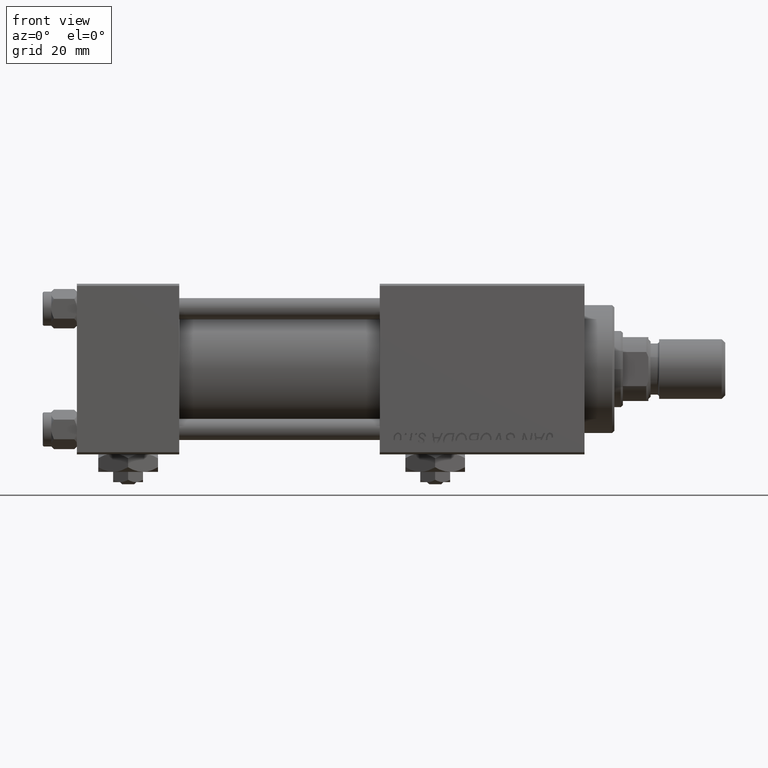
[diagram: clean part render]
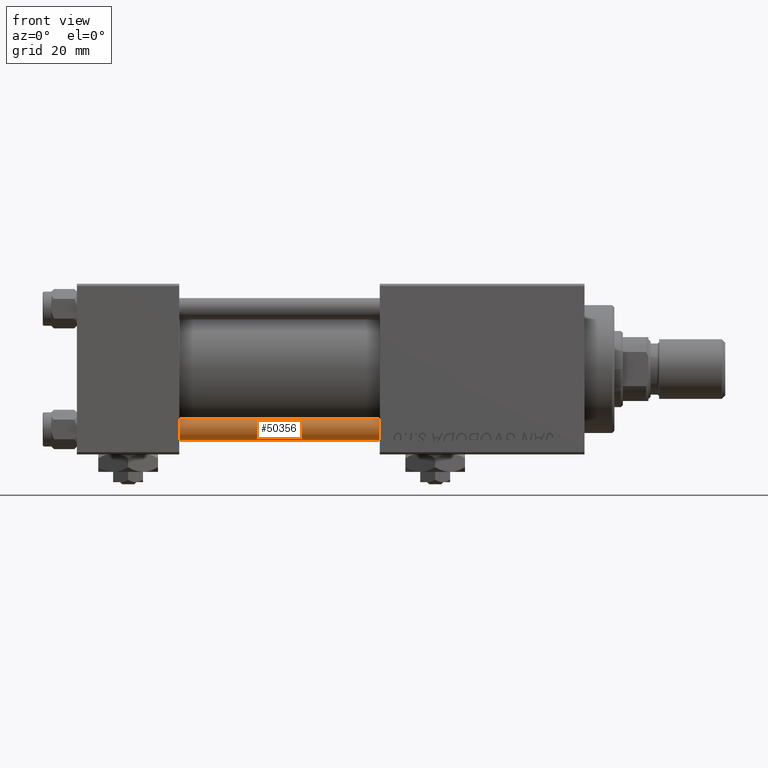
[diagram: same view with one face highlighted and labeled with its STEP entity id]
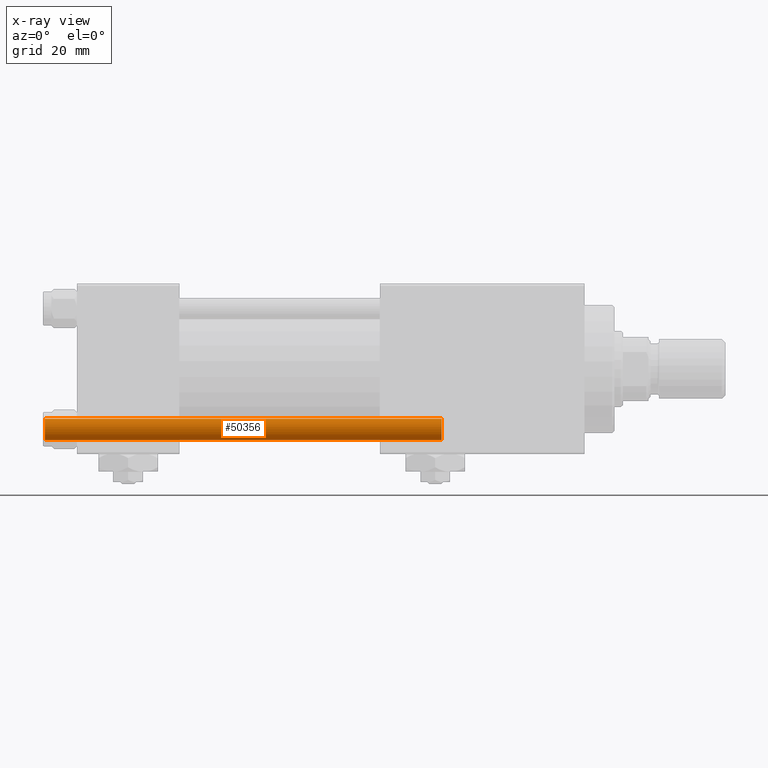
[diagram: x-ray of the same camera — body ghosted, the highlighted face saturated]
A machine part, front view. The second image highlights one B-rep face of the part: STEP entity #50356.
The next image is the same camera in x-ray: the body ghosted, the highlighted face saturated — about 0% of this face is hidden behind the body in this view.
In plain terms, the highlighted cylindrical surface (edge-blend (fillet) strip) has radius 2.5 mm, axis along (-1, -0, -0).
Its self-contained STEP definition (entity closure, byte-faithful):
#2531 = CARTESIAN_POINT ( 'NONE',  ( -2.500000000000000000, 0.000000000000000000, 0.5000000000000004441 ) ) ;
#2735 = DIRECTION ( 'NONE',  ( -0.000000000000000000, -0.000000000000000000, 1.000000000000000000 ) ) ;
#3413 = AXIS2_PLACEMENT_3D ( 'NONE', #36064, #52272, #48026 ) ;
#3484 = LINE ( 'NONE', #48125, #33621 ) ;
#5415 = ORIENTED_EDGE ( 'NONE', *, *, #38694, .T. ) ;
#5804 = CARTESIAN_POINT ( 'NONE',  ( 2.500000000000000000, 3.061616997868383141E-16, 0.5000000000000004441 ) ) ;
#10627 = VERTEX_POINT ( 'NONE', #5804 ) ;
#11083 = EDGE_CURVE ( 'NONE', #17206, #17773, #33652, .T. ) ;
#13988 = DIRECTION ( 'NONE',  ( -0.000000000000000000, -0.000000000000000000, -1.000000000000000000 ) ) ;
#14346 = CARTESIAN_POINT ( 'NONE',  ( 0.000000000000000000, 0.000000000000000000, 94.00000000000000000 ) ) ;
#15302 = ORIENTED_EDGE ( 'NONE', *, *, #11083, .F. ) ;
#16439 = AXIS2_PLACEMENT_3D ( 'NONE', #14346, #17812, #43046 ) ;
#17206 = VERTEX_POINT ( 'NONE', #39326 ) ;
#17773 = VERTEX_POINT ( 'NONE', #2531 ) ;
#17812 = DIRECTION ( 'NONE',  ( -0.000000000000000000, -0.000000000000000000, -1.000000000000000000 ) ) ;
#18070 = EDGE_CURVE ( 'NONE', #10627, #17773, #28866, .T. ) ;
#20334 = CARTESIAN_POINT ( 'NONE',  ( 2.500000000000000000, 3.061616997868383141E-16, 93.50000000000001421 ) ) ;
#28414 = VERTEX_POINT ( 'NONE', #20334 ) ;
#28782 = EDGE_CURVE ( 'NONE', #28414, #10627, #3484, .T. ) ;
#28866 = CIRCLE ( 'NONE', #39092, 2.500000000000000000 ) ;
#31430 = DIRECTION ( 'NONE',  ( 1.000000000000000000, 0.000000000000000000, 0.000000000000000000 ) ) ;
#33397 = ORIENTED_EDGE ( 'NONE', *, *, #18070, .T. ) ;
#33621 = VECTOR ( 'NONE', #39104, 1000.000000000000000 ) ;
#33652 = LINE ( 'NONE', #37906, #38094 ) ;
#34271 = CYLINDRICAL_SURFACE ( 'NONE', #16439, 2.500000000000000000 ) ;
#36064 = CARTESIAN_POINT ( 'NONE',  ( 0.000000000000000000, 0.000000000000000000, 93.50000000000001421 ) ) ;
#37225 = EDGE_LOOP ( 'NONE', ( #5415, #46731, #33397, #15302 ) ) ;
#37906 = CARTESIAN_POINT ( 'NONE',  ( -2.500000000000000000, 0.000000000000000000, 94.00000000000000000 ) ) ;
#38094 = VECTOR ( 'NONE', #13988, 1000.000000000000000 ) ;
#38223 = CIRCLE ( 'NONE', #3413, 2.500000000000000000 ) ;
#38694 = EDGE_CURVE ( 'NONE', #17206, #28414, #38223, .T. ) ;
#39092 = AXIS2_PLACEMENT_3D ( 'NONE', #43396, #2735, #31430 ) ;
#39104 = DIRECTION ( 'NONE',  ( -0.000000000000000000, -0.000000000000000000, -1.000000000000000000 ) ) ;
#39326 = CARTESIAN_POINT ( 'NONE',  ( -2.500000000000000000, 0.000000000000000000, 93.50000000000001421 ) ) ;
#43046 = DIRECTION ( 'NONE',  ( -1.000000000000000000, 0.000000000000000000, 0.000000000000000000 ) ) ;
#43396 = CARTESIAN_POINT ( 'NONE',  ( 0.000000000000000000, 0.000000000000000000, 0.5000000000000004441 ) ) ;
#46511 = FACE_OUTER_BOUND ( 'NONE', #37225, .T. ) ;
#46731 = ORIENTED_EDGE ( 'NONE', *, *, #28782, .T. ) ;
#48026 = DIRECTION ( 'NONE',  ( 1.000000000000000000, 0.000000000000000000, 0.000000000000000000 ) ) ;
#48125 = CARTESIAN_POINT ( 'NONE',  ( 2.500000000000000000, 3.061616997868383141E-16, 94.00000000000000000 ) ) ;
#50356 = ADVANCED_FACE ( 'NONE', ( #46511 ), #34271, .T. ) ;
#52272 = DIRECTION ( 'NONE',  ( 0.000000000000000000, 0.000000000000000000, -1.000000000000000000 ) ) ;